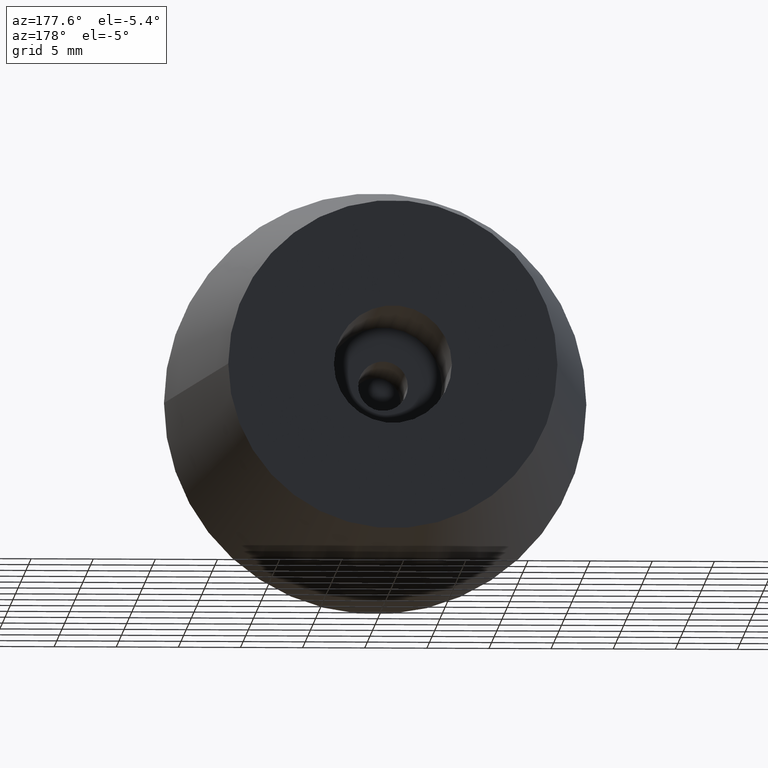
[diagram: clean part render]
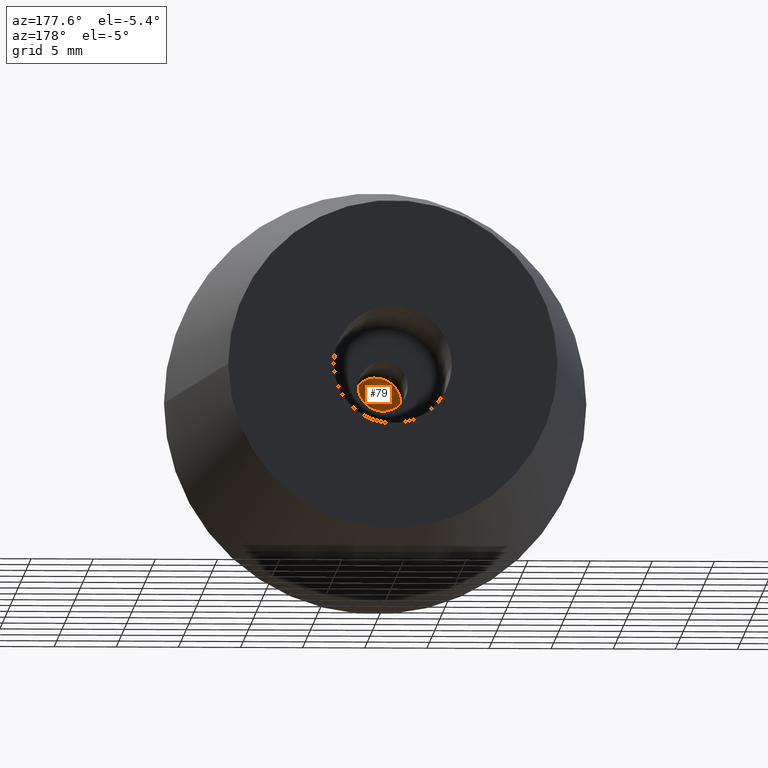
[diagram: same view with one face highlighted and labeled with its STEP entity id]
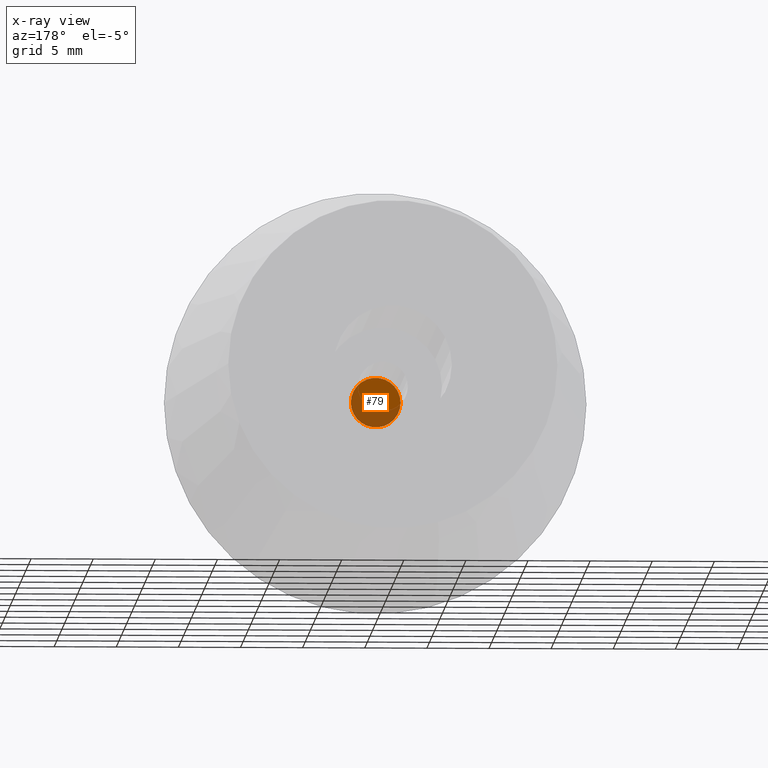
[diagram: x-ray of the same camera — body ghosted, the highlighted face saturated]
A machine part, auxiliary view. The second image highlights one B-rep face of the part: STEP entity #79.
The next image is the same camera in x-ray: the body ghosted, the highlighted face saturated — about 45% of this face is hidden behind the body in this view.
In plain terms, the highlighted planar face has unit normal (0, 1, 0).
Its self-contained STEP definition (entity closure, byte-faithful):
#26=FACE_OUTER_BOUND('',#36,.T.);
#36=EDGE_LOOP('',(#66));
#45=CIRCLE('',#91,2.);
#51=VERTEX_POINT('',#136);
#57=EDGE_CURVE('',#51,#51,#45,.T.);
#66=ORIENTED_EDGE('',*,*,#57,.T.);
#73=PLANE('',#92);
#79=ADVANCED_FACE('',(#26),#73,.T.);
#91=AXIS2_PLACEMENT_3D('',#137,#112,#113);
#92=AXIS2_PLACEMENT_3D('',#138,#114,#115);
#112=DIRECTION('center_axis',(0.,1.,0.));
#113=DIRECTION('ref_axis',(-1.,0.,0.));
#114=DIRECTION('center_axis',(0.,1.,0.));
#115=DIRECTION('ref_axis',(-1.,0.,0.));
#136=CARTESIAN_POINT('',(-2.,1.,0.));
#137=CARTESIAN_POINT('Origin',(0.,1.,0.));
#138=CARTESIAN_POINT('Origin',(0.,1.,0.));